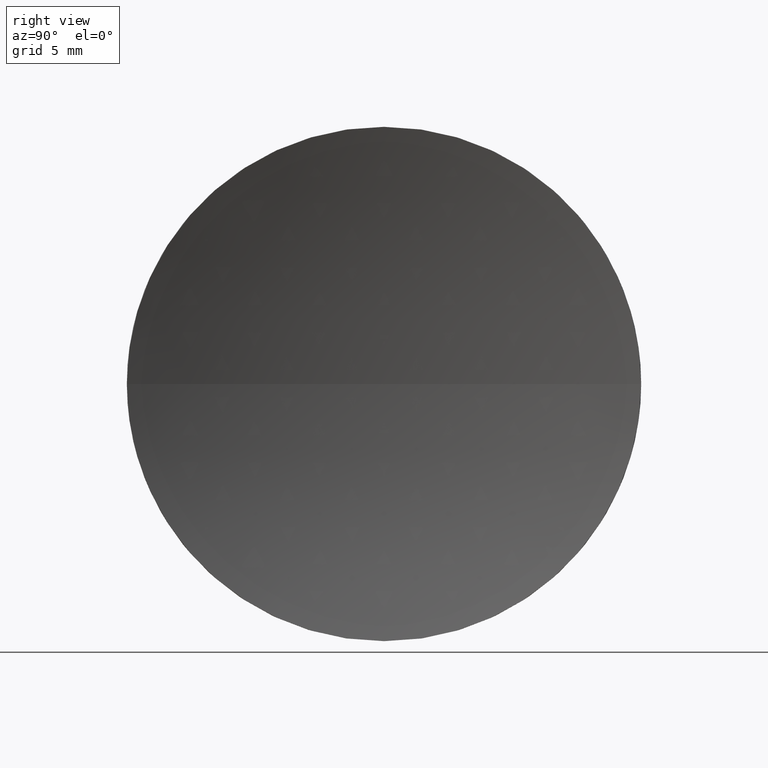
[diagram: clean part render]
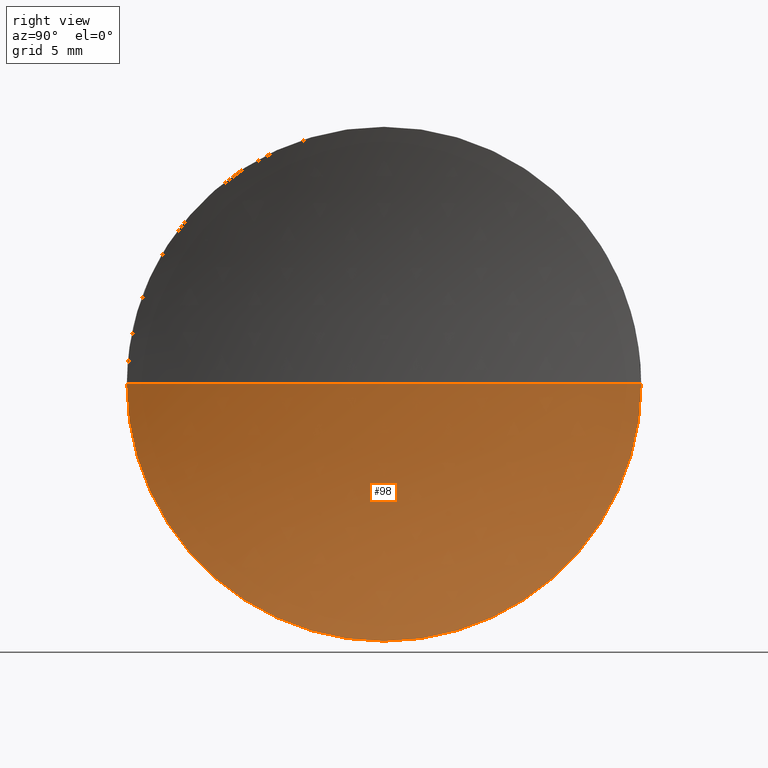
[diagram: same view with one face highlighted and labeled with its STEP entity id]
A machine part, right view. The second image highlights one B-rep face of the part: STEP entity #98.
In plain terms, the highlighted spherical surface has radius 45.85 mm.
Its self-contained STEP definition (entity closure, byte-faithful):
#13 = CARTESIAN_POINT ( 'NONE',  ( 123.1569153117396200, 71.19398908659370300, -12.69999999999998900 ) ) ;
#14 = DIRECTION ( 'NONE',  ( 1.000000000000000000, 0.0000000000000000000, 0.0000000000000000000 ) ) ;
#15 = AXIS2_PLACEMENT_3D ( 'NONE', #171, #175, #68 ) ;
#16 = EDGE_LOOP ( 'NONE', ( #85, #29, #153, #82 ) ) ;
#25 = VERTEX_POINT ( 'NONE', #106 ) ;
#28 = CARTESIAN_POINT ( 'NONE',  ( 167.2129307920347100, 71.19398908659368900, 0.0000000000000000000 ) ) ;
#29 = ORIENTED_EDGE ( 'NONE', *, *, #184, .F. ) ;
#49 = SPHERICAL_SURFACE ( 'NONE', #90, 45.85000000000001600 ) ;
#66 = CIRCLE ( 'NONE', #15, 12.69999999999998900 ) ;
#68 = DIRECTION ( 'NONE',  ( 0.0000000000000000000, 0.0000000000000000000, 1.000000000000000000 ) ) ;
#72 = DIRECTION ( 'NONE',  ( 0.0000000000000000000, 1.000000000000000000, 0.0000000000000000000 ) ) ;
#73 = CARTESIAN_POINT ( 'NONE',  ( 123.1569153117396200, 83.89398908659367700, 0.0000000000000000000 ) ) ;
#74 = VERTEX_POINT ( 'NONE', #73 ) ;
#82 = ORIENTED_EDGE ( 'NONE', *, *, #140, .T. ) ;
#83 = FACE_OUTER_BOUND ( 'NONE', #16, .T. ) ;
#85 = ORIENTED_EDGE ( 'NONE', *, *, #170, .F. ) ;
#90 = AXIS2_PLACEMENT_3D ( 'NONE', #149, #151, #72 ) ;
#95 = CIRCLE ( 'NONE', #125, 12.69999999999998900 ) ;
#98 = ADVANCED_FACE ( 'NONE', ( #83 ), #49, .F. ) ;
#101 = EDGE_CURVE ( 'NONE', #74, #159, #95, .T. ) ;
#103 = CIRCLE ( 'NONE', #162, 45.85000000000001600 ) ;
#104 = VERTEX_POINT ( 'NONE', #148 ) ;
#106 = CARTESIAN_POINT ( 'NONE',  ( 123.1569153117396200, 58.49398908659370000, -1.555301434917136900E-015 ) ) ;
#110 = DIRECTION ( 'NONE',  ( 0.0000000000000000000, 1.224646799147353200E-016, -1.000000000000000000 ) ) ;
#113 = CARTESIAN_POINT ( 'NONE',  ( 167.2129307920347100, 71.19398908659368900, 0.0000000000000000000 ) ) ;
#125 = AXIS2_PLACEMENT_3D ( 'NONE', #165, #177, #129 ) ;
#129 = DIRECTION ( 'NONE',  ( 0.0000000000000000000, 0.0000000000000000000, 1.000000000000000000 ) ) ;
#131 = DIRECTION ( 'NONE',  ( 0.0000000000000000000, 0.0000000000000000000, 1.000000000000000000 ) ) ;
#140 = EDGE_CURVE ( 'NONE', #74, #104, #154, .T. ) ;
#148 = CARTESIAN_POINT ( 'NONE',  ( 121.3629307920347000, 71.19398908659368900, 0.0000000000000000000 ) ) ;
#149 = CARTESIAN_POINT ( 'NONE',  ( 167.2129307920347100, 71.19398908659368900, 0.0000000000000000000 ) ) ;
#151 = DIRECTION ( 'NONE',  ( 0.0000000000000000000, 0.0000000000000000000, -1.000000000000000000 ) ) ;
#153 = ORIENTED_EDGE ( 'NONE', *, *, #101, .F. ) ;
#154 = CIRCLE ( 'NONE', #182, 45.85000000000003000 ) ;
#159 = VERTEX_POINT ( 'NONE', #13 ) ;
#162 = AXIS2_PLACEMENT_3D ( 'NONE', #113, #110, #180 ) ;
#165 = CARTESIAN_POINT ( 'NONE',  ( 123.1569153117396200, 71.19398908659370300, 0.0000000000000000000 ) ) ;
#170 = EDGE_CURVE ( 'NONE', #25, #104, #103, .T. ) ;
#171 = CARTESIAN_POINT ( 'NONE',  ( 123.1569153117396200, 71.19398908659370300, 0.0000000000000000000 ) ) ;
#175 = DIRECTION ( 'NONE',  ( -1.000000000000000000, -0.0000000000000000000, -0.0000000000000000000 ) ) ;
#177 = DIRECTION ( 'NONE',  ( -1.000000000000000000, -0.0000000000000000000, -0.0000000000000000000 ) ) ;
#180 = DIRECTION ( 'NONE',  ( 0.0000000000000000000, 1.000000000000000000, 1.224646799147353200E-016 ) ) ;
#182 = AXIS2_PLACEMENT_3D ( 'NONE', #28, #131, #14 ) ;
#184 = EDGE_CURVE ( 'NONE', #159, #25, #66, .T. ) ;